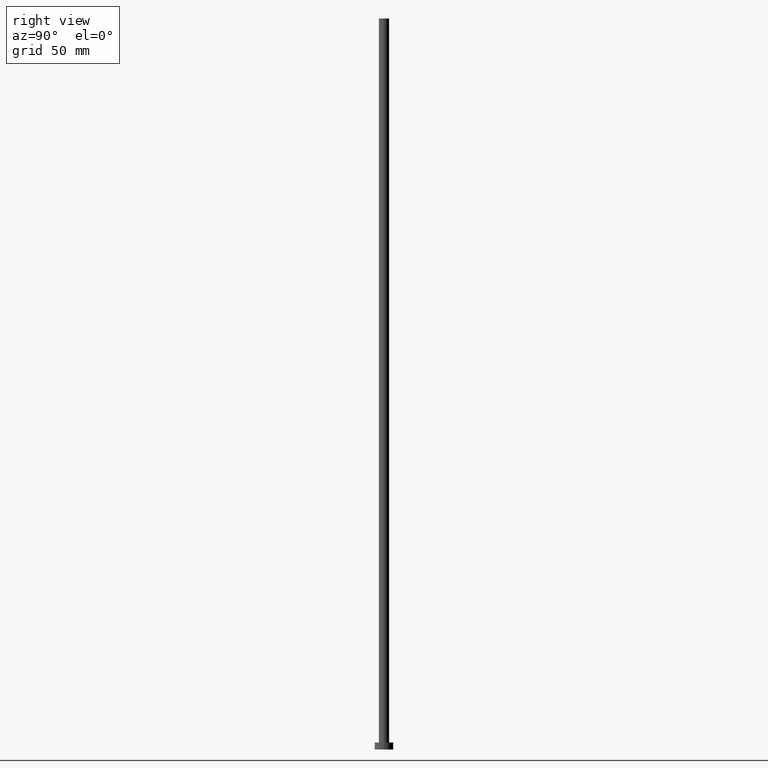
[diagram: clean part render]
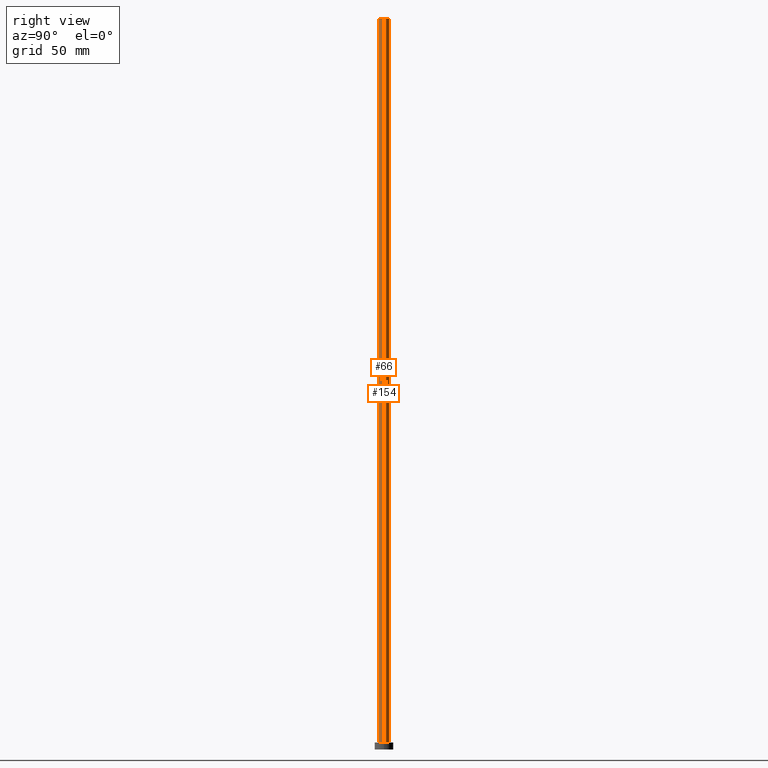
[diagram: same view with one multi-face feature highlighted, each face labeled with its STEP entity id]
A machine part, right view. The highlighted faces form ONE feature: a constant-radius fillet chain: 2 tangent blend faces with common blend radius 2.25 mm. The faces share edges in the B-rep.
Their STEP definitions:
[1] entity #66 (Cylinder):
#2 = DIRECTION ( 'NONE',  ( 0.000000000000000000, 0.000000000000000000, 1.000000000000000000 ) ) ;
#3 = DIRECTION ( 'NONE',  ( -0.000000000000000000, -0.000000000000000000, -1.000000000000000000 ) ) ;
#4 = FACE_OUTER_BOUND ( 'NONE', #100, .T. ) ;
#5 = EDGE_CURVE ( 'NONE', #17, #216, #14, .T. ) ;
#6 = CARTESIAN_POINT ( 'NONE',  ( -2.250000000000000000, 0.000000000000000000, 3.000000000000000000 ) ) ;
#10 = CARTESIAN_POINT ( 'NONE',  ( -2.250000000000000000, 0.000000000000000000, 315.0000000000000000 ) ) ;
#13 = ORIENTED_EDGE ( 'NONE', *, *, #5, .F. ) ;
#14 = LINE ( 'NONE', #233, #77 ) ;
#16 = DIRECTION ( 'NONE',  ( 1.000000000000000000, 0.000000000000000000, 0.000000000000000000 ) ) ;
#17 = VERTEX_POINT ( 'NONE', #121 ) ;
#19 = DIRECTION ( 'NONE',  ( -1.000000000000000000, 0.000000000000000000, 0.000000000000000000 ) ) ;
#21 = CARTESIAN_POINT ( 'NONE',  ( 0.000000000000000000, 0.000000000000000000, 315.0000000000000000 ) ) ;
#26 = LINE ( 'NONE', #10, #240 ) ;
#66 = ADVANCED_FACE ( 'NONE', ( #4 ), #201, .T. ) ;
#73 = VERTEX_POINT ( 'NONE', #188 ) ;
#75 = AXIS2_PLACEMENT_3D ( 'NONE', #197, #119, #16 ) ;
#76 = VERTEX_POINT ( 'NONE', #6 ) ;
#77 = VECTOR ( 'NONE', #3, 1000.000000000000000 ) ;
#100 = EDGE_LOOP ( 'NONE', ( #13, #124, #184, #255 ) ) ;
#102 = EDGE_CURVE ( 'NONE', #73, #17, #218, .T. ) ;
#104 = CIRCLE ( 'NONE', #75, 2.250000000000000000 ) ;
#119 = DIRECTION ( 'NONE',  ( 0.000000000000000000, 0.000000000000000000, 1.000000000000000000 ) ) ;
#121 = CARTESIAN_POINT ( 'NONE',  ( 2.250000000000000000, 2.755455298081544285E-16, 315.0000000000000000 ) ) ;
#124 = ORIENTED_EDGE ( 'NONE', *, *, #102, .F. ) ;
#130 = CARTESIAN_POINT ( 'NONE',  ( 0.000000000000000000, 0.000000000000000000, 315.0000000000000000 ) ) ;
#160 = DIRECTION ( 'NONE',  ( 1.000000000000000000, 0.000000000000000000, 0.000000000000000000 ) ) ;
#163 = DIRECTION ( 'NONE',  ( -0.000000000000000000, -0.000000000000000000, -1.000000000000000000 ) ) ;
#172 = CARTESIAN_POINT ( 'NONE',  ( 2.250000000000000000, 2.755455298081544285E-16, 3.000000000000000000 ) ) ;
#182 = EDGE_CURVE ( 'NONE', #76, #216, #104, .T. ) ;
#184 = ORIENTED_EDGE ( 'NONE', *, *, #187, .T. ) ;
#187 = EDGE_CURVE ( 'NONE', #73, #76, #26, .T. ) ;
#188 = CARTESIAN_POINT ( 'NONE',  ( -2.250000000000000000, 0.000000000000000000, 315.0000000000000000 ) ) ;
#197 = CARTESIAN_POINT ( 'NONE',  ( 0.000000000000000000, 0.000000000000000000, 3.000000000000000000 ) ) ;
#198 = AXIS2_PLACEMENT_3D ( 'NONE', #21, #163, #19 ) ;
#201 = CYLINDRICAL_SURFACE ( 'NONE', #198, 2.250000000000000000 ) ;
#216 = VERTEX_POINT ( 'NONE', #172 ) ;
#218 = CIRCLE ( 'NONE', #238, 2.250000000000000000 ) ;
#233 = CARTESIAN_POINT ( 'NONE',  ( 2.250000000000000000, 2.755455298081544285E-16, 315.0000000000000000 ) ) ;
#238 = AXIS2_PLACEMENT_3D ( 'NONE', #130, #2, #160 ) ;
#240 = VECTOR ( 'NONE', #244, 1000.000000000000000 ) ;
#244 = DIRECTION ( 'NONE',  ( -0.000000000000000000, -0.000000000000000000, -1.000000000000000000 ) ) ;
#255 = ORIENTED_EDGE ( 'NONE', *, *, #182, .T. ) ;
[2] entity #154 (Cylinder):
#3 = DIRECTION ( 'NONE',  ( -0.000000000000000000, -0.000000000000000000, -1.000000000000000000 ) ) ;
#5 = EDGE_CURVE ( 'NONE', #17, #216, #14, .T. ) ;
#6 = CARTESIAN_POINT ( 'NONE',  ( -2.250000000000000000, 0.000000000000000000, 3.000000000000000000 ) ) ;
#10 = CARTESIAN_POINT ( 'NONE',  ( -2.250000000000000000, 0.000000000000000000, 315.0000000000000000 ) ) ;
#14 = LINE ( 'NONE', #233, #77 ) ;
#17 = VERTEX_POINT ( 'NONE', #121 ) ;
#18 = ORIENTED_EDGE ( 'NONE', *, *, #219, .F. ) ;
#26 = LINE ( 'NONE', #10, #240 ) ;
#31 = EDGE_LOOP ( 'NONE', ( #18, #199, #252, #241 ) ) ;
#34 = EDGE_CURVE ( 'NONE', #216, #76, #103, .T. ) ;
#43 = CYLINDRICAL_SURFACE ( 'NONE', #126, 2.250000000000000000 ) ;
#46 = DIRECTION ( 'NONE',  ( 1.000000000000000000, 0.000000000000000000, 0.000000000000000000 ) ) ;
#47 = CARTESIAN_POINT ( 'NONE',  ( 0.000000000000000000, 0.000000000000000000, 315.0000000000000000 ) ) ;
#48 = CARTESIAN_POINT ( 'NONE',  ( 0.000000000000000000, 0.000000000000000000, 315.0000000000000000 ) ) ;
#60 = CIRCLE ( 'NONE', #173, 2.250000000000000000 ) ;
#73 = VERTEX_POINT ( 'NONE', #188 ) ;
#76 = VERTEX_POINT ( 'NONE', #6 ) ;
#77 = VECTOR ( 'NONE', #3, 1000.000000000000000 ) ;
#79 = CARTESIAN_POINT ( 'NONE',  ( 0.000000000000000000, 0.000000000000000000, 3.000000000000000000 ) ) ;
#103 = CIRCLE ( 'NONE', #221, 2.250000000000000000 ) ;
#108 = DIRECTION ( 'NONE',  ( 0.000000000000000000, 0.000000000000000000, 1.000000000000000000 ) ) ;
#110 = FACE_OUTER_BOUND ( 'NONE', #31, .T. ) ;
#111 = DIRECTION ( 'NONE',  ( -0.000000000000000000, -0.000000000000000000, -1.000000000000000000 ) ) ;
#121 = CARTESIAN_POINT ( 'NONE',  ( 2.250000000000000000, 2.755455298081544285E-16, 315.0000000000000000 ) ) ;
#126 = AXIS2_PLACEMENT_3D ( 'NONE', #48, #111, #195 ) ;
#154 = ADVANCED_FACE ( 'NONE', ( #110 ), #43, .T. ) ;
#161 = DIRECTION ( 'NONE',  ( 0.000000000000000000, 0.000000000000000000, 1.000000000000000000 ) ) ;
#172 = CARTESIAN_POINT ( 'NONE',  ( 2.250000000000000000, 2.755455298081544285E-16, 3.000000000000000000 ) ) ;
#173 = AXIS2_PLACEMENT_3D ( 'NONE', #47, #108, #193 ) ;
#187 = EDGE_CURVE ( 'NONE', #73, #76, #26, .T. ) ;
#188 = CARTESIAN_POINT ( 'NONE',  ( -2.250000000000000000, 0.000000000000000000, 315.0000000000000000 ) ) ;
#193 = DIRECTION ( 'NONE',  ( 1.000000000000000000, 0.000000000000000000, 0.000000000000000000 ) ) ;
#195 = DIRECTION ( 'NONE',  ( -1.000000000000000000, 0.000000000000000000, 0.000000000000000000 ) ) ;
#199 = ORIENTED_EDGE ( 'NONE', *, *, #5, .T. ) ;
#216 = VERTEX_POINT ( 'NONE', #172 ) ;
#219 = EDGE_CURVE ( 'NONE', #17, #73, #60, .T. ) ;
#221 = AXIS2_PLACEMENT_3D ( 'NONE', #79, #161, #46 ) ;
#233 = CARTESIAN_POINT ( 'NONE',  ( 2.250000000000000000, 2.755455298081544285E-16, 315.0000000000000000 ) ) ;
#240 = VECTOR ( 'NONE', #244, 1000.000000000000000 ) ;
#241 = ORIENTED_EDGE ( 'NONE', *, *, #187, .F. ) ;
#244 = DIRECTION ( 'NONE',  ( -0.000000000000000000, -0.000000000000000000, -1.000000000000000000 ) ) ;
#252 = ORIENTED_EDGE ( 'NONE', *, *, #34, .T. ) ;